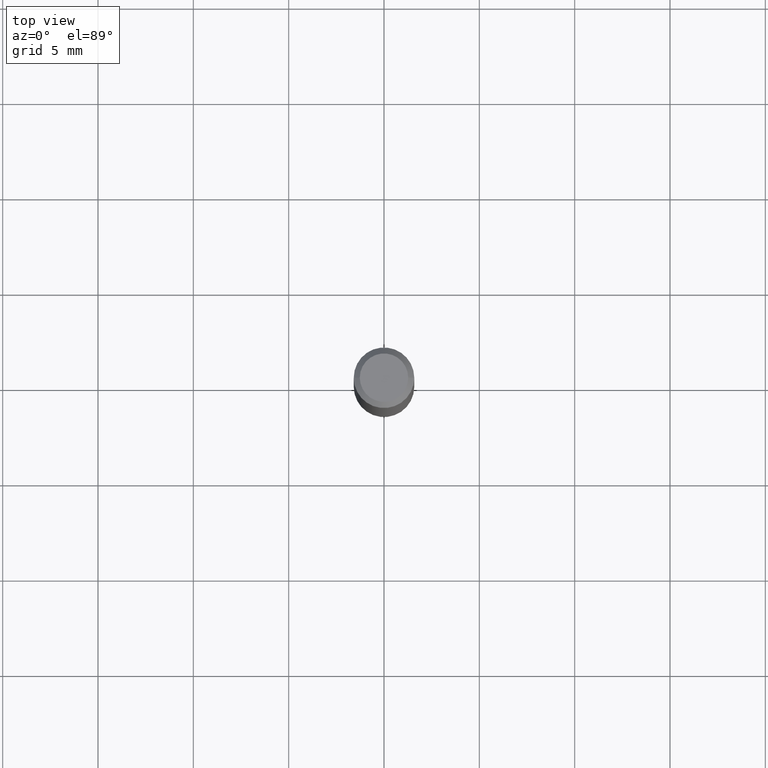
[diagram: clean part render]
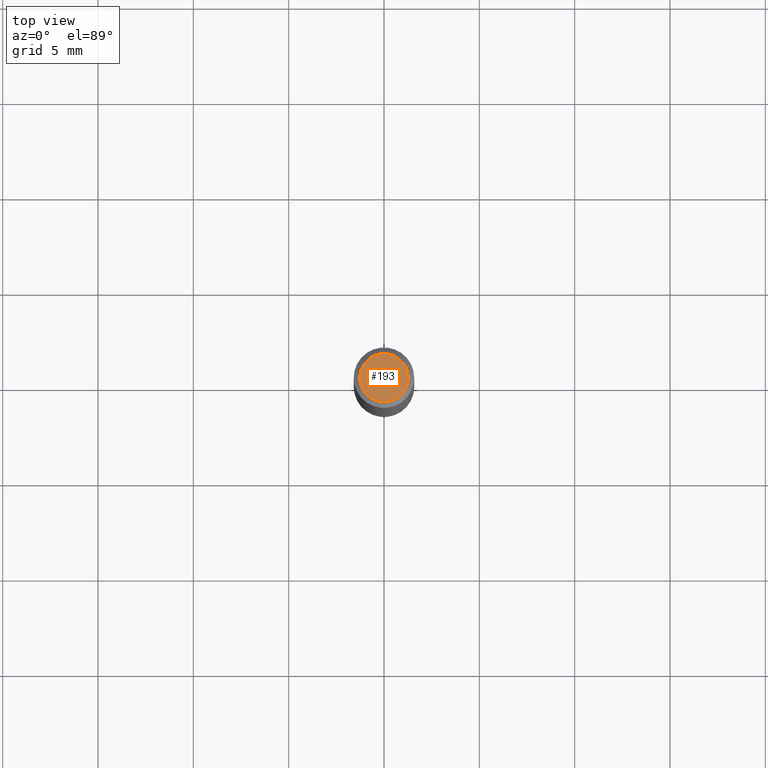
[diagram: same view with one face highlighted and labeled with its STEP entity id]
A machine part, top view. The second image highlights one B-rep face of the part: STEP entity #193.
In plain terms, the highlighted planar face has unit normal (0, -0, -1).
Its self-contained STEP definition (entity closure, byte-faithful):
#54 = VERTEX_POINT ( 'NONE', #118 ) ;
#99 = ORIENTED_EDGE ( 'NONE', *, *, #123, .T. ) ;
#110 = DIRECTION ( 'NONE',  ( -2.445468806185136597E-29, 3.491481338843145583E-15, 1.000000000000000000 ) ) ;
#118 = CARTESIAN_POINT ( 'NONE',  ( -0.04999999999999999584, 3.709698922520826725E-16, 3.380025165621512536E-19 ) ) ;
#123 = EDGE_CURVE ( 'NONE', #313, #54, #266, .T. ) ;
#139 = CARTESIAN_POINT ( 'NONE',  ( -4.132873053354867254E-48, 5.900647395337818946E-34, 1.690012582823346072E-19 ) ) ;
#151 = DIRECTION ( 'NONE',  ( 1.000000000000000000, -6.982962677686265922E-15, 4.876194921942043128E-29 ) ) ;
#155 = CARTESIAN_POINT ( 'NONE',  ( 0.04999999999999999584, -4.077247707424184705E-16, 3.380025165673154903E-19 ) ) ;
#167 = EDGE_CURVE ( 'NONE', #54, #313, #372, .T. ) ;
#174 = ORIENTED_EDGE ( 'NONE', *, *, #167, .T. ) ;
#193 = ADVANCED_FACE ( 'NONE', ( #219 ), #329, .F. ) ;
#213 = AXIS2_PLACEMENT_3D ( 'NONE', #340, #482, #151 ) ;
#219 = FACE_OUTER_BOUND ( 'NONE', #436, .T. ) ;
#257 = DIRECTION ( 'NONE',  ( 2.438088387897960049E-29, -3.491481338843145188E-15, -1.000000000000000000 ) ) ;
#265 = CARTESIAN_POINT ( 'NONE',  ( -8.265746106709734507E-48, 1.180129479067563789E-33, 3.380025165646692144E-19 ) ) ;
#266 = CIRCLE ( 'NONE', #283, 0.04999999999999999584 ) ;
#283 = AXIS2_PLACEMENT_3D ( 'NONE', #265, #110, #336 ) ;
#313 = VERTEX_POINT ( 'NONE', #155 ) ;
#329 = PLANE ( 'NONE',  #382 ) ;
#336 = DIRECTION ( 'NONE',  ( 1.000000000000000000, -6.982962677686265922E-15, 4.876194921942043128E-29 ) ) ;
#340 = CARTESIAN_POINT ( 'NONE',  ( -8.265746106709734507E-48, 1.180129479067563789E-33, 3.380025165646692144E-19 ) ) ;
#372 = CIRCLE ( 'NONE', #213, 0.04999999999999999584 ) ;
#382 = AXIS2_PLACEMENT_3D ( 'NONE', #139, #257, #401 ) ;
#401 = DIRECTION ( 'NONE',  ( -1.000000000000000000, 6.982962677686265922E-15, -4.876176775795935793E-29 ) ) ;
#436 = EDGE_LOOP ( 'NONE', ( #174, #99 ) ) ;
#482 = DIRECTION ( 'NONE',  ( -2.445468806185136597E-29, 3.491481338843145583E-15, 1.000000000000000000 ) ) ;